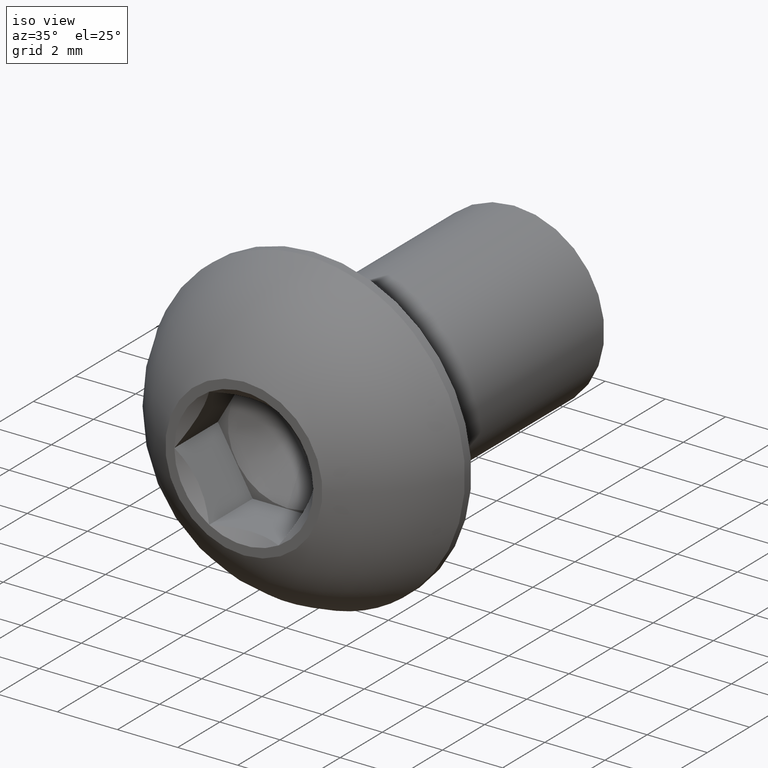
[diagram: clean part render]
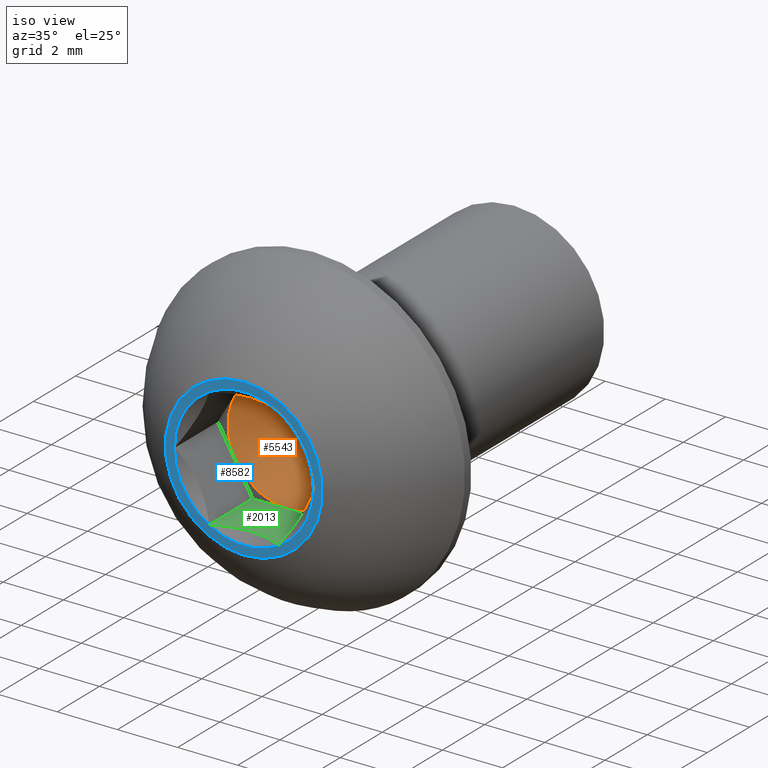
[diagram: same view with three faces highlighted in distinct colors, each labeled with its STEP entity id]
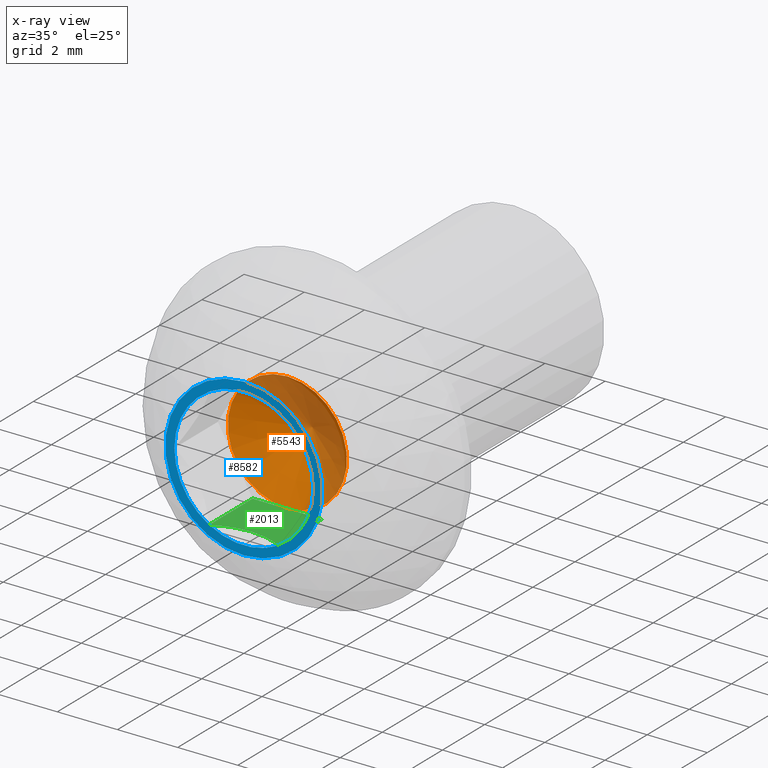
[diagram: x-ray of the same camera — body ghosted, the three highlighted faces saturated]
A machine part, iso view with three faces highlighted in distinct colors.
The next image is the same camera in x-ray (body ghosted, the three faces saturated) — at least one of them is partly hidden behind the body in this view.
Their STEP definitions:

[orange] entity #5543 — the highlighted conical surface has half-angle 59 deg.
#162 = ORIENTED_EDGE ( 'NONE', *, *, #5031, .F. ) ;
#1245 = CONICAL_SURFACE ( 'NONE', #7232, 1.979999999999999500, 1.029744258676657400 ) ;
#1353 = CARTESIAN_POINT ( 'NONE',  ( 0.0000000000000000000, 2.062499999999999600, -1.980000000000000000 ) ) ;
#1460 = DIRECTION ( 'NONE',  ( -0.0000000000000000000, 1.000000000000000000, -0.0000000000000000000 ) ) ;
#2366 = FACE_OUTER_BOUND ( 'NONE', #12409, .T. ) ;
#4270 = DIRECTION ( 'NONE',  ( 0.0000000000000000000, 0.0000000000000000000, -1.000000000000000000 ) ) ;
#5031 = EDGE_CURVE ( 'NONE', #14874, #14874, #10055, .T. ) ;
#5543 = ADVANCED_FACE ( 'NONE', ( #2366 ), #1245, .F. ) ;
#7232 = AXIS2_PLACEMENT_3D ( 'NONE', #10131, #12736, #4270 ) ;
#7824 = AXIS2_PLACEMENT_3D ( 'NONE', #8833, #1460, #11258 ) ;
#8833 = CARTESIAN_POINT ( 'NONE',  ( 0.0000000000000000000, 2.062499999999999600, 0.0000000000000000000 ) ) ;
#10055 = CIRCLE ( 'NONE', #7824, 1.980000000000000000 ) ;
#10131 = CARTESIAN_POINT ( 'NONE',  ( 0.0000000000000000000, 2.062499999999999100, 0.0000000000000000000 ) ) ;
#11258 = DIRECTION ( 'NONE',  ( 0.0000000000000000000, 0.0000000000000000000, -1.000000000000000000 ) ) ;
#12409 = EDGE_LOOP ( 'NONE', ( #162 ) ) ;
#12736 = DIRECTION ( 'NONE',  ( -0.0000000000000000000, -1.000000000000000000, -0.0000000000000000000 ) ) ;
#14874 = VERTEX_POINT ( 'NONE', #1353 ) ;

[blue] entity #8582 — the highlighted planar face has unit normal (0, 1, 0).
#141 = CARTESIAN_POINT ( 'NONE',  ( 0.0000000000000000000, -8.673617379884035500E-016, -2.609401076758501000 ) ) ;
#376 = CARTESIAN_POINT ( 'NONE',  ( -2.309401076758476300, 0.0000000000000000000, 1.326675390987758900E-016 ) ) ;
#422 = CARTESIAN_POINT ( 'NONE',  ( 0.0000000000000000000, 0.0000000000000000000, 0.0000000000000000000 ) ) ;
#535 = CIRCLE ( 'NONE', #15414, 2.309401076758502900 ) ;
#917 = ORIENTED_EDGE ( 'NONE', *, *, #6688, .T. ) ;
#969 = CARTESIAN_POINT ( 'NONE',  ( -1.154700538379267900, 0.0000000000000000000, -2.000000000000000900 ) ) ;
#1573 = FACE_OUTER_BOUND ( 'NONE', #6127, .T. ) ;
#1671 = DIRECTION ( 'NONE',  ( 0.0000000000000000000, 0.0000000000000000000, -1.000000000000000000 ) ) ;
#2018 = DIRECTION ( 'NONE',  ( 0.0000000000000000000, -0.0000000000000000000, 1.000000000000000000 ) ) ;
#2074 = AXIS2_PLACEMENT_3D ( 'NONE', #13815, #5546, #12656 ) ;
#2343 = AXIS2_PLACEMENT_3D ( 'NONE', #10836, #3671, #3722 ) ;
#2613 = VERTEX_POINT ( 'NONE', #376 ) ;
#2686 = CIRCLE ( 'NONE', #2343, 2.309401076758502900 ) ;
#2839 = VERTEX_POINT ( 'NONE', #141 ) ;
#3077 = AXIS2_PLACEMENT_3D ( 'NONE', #13717, #5244, #12515 ) ;
#3187 = CARTESIAN_POINT ( 'NONE',  ( 0.0000000000000000000, 0.0000000000000000000, 0.0000000000000000000 ) ) ;
#3671 = DIRECTION ( 'NONE',  ( -0.0000000000000000000, -1.000000000000000000, -0.0000000000000000000 ) ) ;
#3722 = DIRECTION ( 'NONE',  ( 0.0000000000000000000, 0.0000000000000000000, -1.000000000000000000 ) ) ;
#3823 = CIRCLE ( 'NONE', #15480, 2.309401076758502900 ) ;
#3907 = ORIENTED_EDGE ( 'NONE', *, *, #9244, .F. ) ;
#4233 = DIRECTION ( 'NONE',  ( 0.0000000000000000000, 0.0000000000000000000, -1.000000000000000000 ) ) ;
#4307 = EDGE_CURVE ( 'NONE', #2613, #12905, #535, .T. ) ;
#4752 = FACE_BOUND ( 'NONE', #12276, .T. ) ;
#5244 = DIRECTION ( 'NONE',  ( -0.0000000000000000000, -1.000000000000000000, -0.0000000000000000000 ) ) ;
#5546 = DIRECTION ( 'NONE',  ( -0.0000000000000000000, -1.000000000000000000, -0.0000000000000000000 ) ) ;
#5631 = PLANE ( 'NONE',  #10286 ) ;
#5775 = VERTEX_POINT ( 'NONE', #7388 ) ;
#6119 = DIRECTION ( 'NONE',  ( 0.0000000000000000000, 0.0000000000000000000, -1.000000000000000000 ) ) ;
#6127 = EDGE_LOOP ( 'NONE', ( #917 ) ) ;
#6490 = DIRECTION ( 'NONE',  ( -0.0000000000000000000, -1.000000000000000000, -0.0000000000000000000 ) ) ;
#6492 = VERTEX_POINT ( 'NONE', #15311 ) ;
#6495 = CARTESIAN_POINT ( 'NONE',  ( 0.0000000000000000000, -8.673617379884035500E-016, 0.0000000000000000000 ) ) ;
#6599 = DIRECTION ( 'NONE',  ( 0.0000000000000000000, 0.0000000000000000000, -1.000000000000000000 ) ) ;
#6688 = EDGE_CURVE ( 'NONE', #2839, #2839, #10218, .T. ) ;
#7141 = AXIS2_PLACEMENT_3D ( 'NONE', #6495, #8842, #6599 ) ;
#7388 = CARTESIAN_POINT ( 'NONE',  ( -1.154700538379267900, 0.0000000000000000000, 1.999999999999999600 ) ) ;
#7919 = CARTESIAN_POINT ( 'NONE',  ( 2.609401076758502700, -4.336808689942017700E-016, 0.0000000000000000000 ) ) ;
#8176 = EDGE_CURVE ( 'NONE', #5775, #2613, #8485, .T. ) ;
#8485 = CIRCLE ( 'NONE', #3077, 2.309401076758502900 ) ;
#8582 = ADVANCED_FACE ( 'NONE', ( #4752, #1573 ), #5631, .F. ) ;
#8842 = DIRECTION ( 'NONE',  ( -0.0000000000000000000, -1.000000000000000000, -0.0000000000000000000 ) ) ;
#8869 = CARTESIAN_POINT ( 'NONE',  ( 1.154700538379223500, 0.0000000000000000000, -2.000000000000016000 ) ) ;
#8871 = CIRCLE ( 'NONE', #2074, 2.309401076758502900 ) ;
#9082 = AXIS2_PLACEMENT_3D ( 'NONE', #3187, #11415, #4233 ) ;
#9244 = EDGE_CURVE ( 'NONE', #9754, #6492, #2686, .T. ) ;
#9270 = CIRCLE ( 'NONE', #9082, 2.309401076758502900 ) ;
#9595 = VERTEX_POINT ( 'NONE', #10564 ) ;
#9754 = VERTEX_POINT ( 'NONE', #8869 ) ;
#9960 = ORIENTED_EDGE ( 'NONE', *, *, #8176, .F. ) ;
#10218 = CIRCLE ( 'NONE', #7141, 2.609401076758501000 ) ;
#10244 = EDGE_CURVE ( 'NONE', #12905, #9754, #9270, .T. ) ;
#10286 = AXIS2_PLACEMENT_3D ( 'NONE', #7919, #13897, #2018 ) ;
#10499 = ORIENTED_EDGE ( 'NONE', *, *, #12106, .F. ) ;
#10564 = CARTESIAN_POINT ( 'NONE',  ( 1.154700538379232100, 0.0000000000000000000, 1.999999999999999600 ) ) ;
#10836 = CARTESIAN_POINT ( 'NONE',  ( 0.0000000000000000000, 0.0000000000000000000, 0.0000000000000000000 ) ) ;
#11415 = DIRECTION ( 'NONE',  ( -0.0000000000000000000, -1.000000000000000000, -0.0000000000000000000 ) ) ;
#12012 = CARTESIAN_POINT ( 'NONE',  ( 0.0000000000000000000, 0.0000000000000000000, 0.0000000000000000000 ) ) ;
#12013 = EDGE_CURVE ( 'NONE', #6492, #9595, #3823, .T. ) ;
#12106 = EDGE_CURVE ( 'NONE', #9595, #5775, #8871, .T. ) ;
#12276 = EDGE_LOOP ( 'NONE', ( #3907, #14868, #13569, #9960, #10499, #14522 ) ) ;
#12515 = DIRECTION ( 'NONE',  ( 0.0000000000000000000, 0.0000000000000000000, -1.000000000000000000 ) ) ;
#12656 = DIRECTION ( 'NONE',  ( 0.0000000000000000000, 0.0000000000000000000, -1.000000000000000000 ) ) ;
#12905 = VERTEX_POINT ( 'NONE', #969 ) ;
#13233 = DIRECTION ( 'NONE',  ( -0.0000000000000000000, -1.000000000000000000, -0.0000000000000000000 ) ) ;
#13569 = ORIENTED_EDGE ( 'NONE', *, *, #4307, .F. ) ;
#13717 = CARTESIAN_POINT ( 'NONE',  ( 0.0000000000000000000, 0.0000000000000000000, 0.0000000000000000000 ) ) ;
#13815 = CARTESIAN_POINT ( 'NONE',  ( 0.0000000000000000000, 0.0000000000000000000, 0.0000000000000000000 ) ) ;
#13897 = DIRECTION ( 'NONE',  ( 0.0000000000000000000, 1.000000000000000000, 0.0000000000000000000 ) ) ;
#14522 = ORIENTED_EDGE ( 'NONE', *, *, #12013, .F. ) ;
#14868 = ORIENTED_EDGE ( 'NONE', *, *, #10244, .F. ) ;
#15311 = CARTESIAN_POINT ( 'NONE',  ( 2.309401076758477200, 0.0000000000000000000, -4.329725882211680000E-016 ) ) ;
#15414 = AXIS2_PLACEMENT_3D ( 'NONE', #12012, #13233, #6119 ) ;
#15480 = AXIS2_PLACEMENT_3D ( 'NONE', #422, #6490, #1671 ) ;

[green] entity #2013 — the highlighted planar face has unit normal (0, 0, -1).
#92 = CARTESIAN_POINT ( 'NONE',  ( -1.154700538379267900, 2.062499999999999600, -2.000000000000000900 ) ) ;
#96 = CARTESIAN_POINT ( 'NONE',  ( -0.4015228115318104600, 0.2778787755379924000, -2.000000000000000400 ) ) ;
#642 = DIRECTION ( 'NONE',  ( 0.0000000000000000000, 0.0000000000000000000, -1.000000000000000000 ) ) ;
#957 = VECTOR ( 'NONE', #10927, 1000.000000000000000 ) ;
#969 = CARTESIAN_POINT ( 'NONE',  ( -1.154700538379267900, 0.0000000000000000000, -2.000000000000000900 ) ) ;
#1458 = CARTESIAN_POINT ( 'NONE',  ( -0.9755627209765441700, 0.08956890870135708600, -2.000000000000000900 ) ) ;
#1507 = EDGE_CURVE ( 'NONE', #6448, #12905, #4872, .T. ) ;
#1810 = AXIS2_PLACEMENT_3D ( 'NONE', #4291, #642, #11536 ) ;
#2013 = ADVANCED_FACE ( 'NONE', ( #4133 ), #5601, .F. ) ;
#2508 = CARTESIAN_POINT ( 'NONE',  ( -0.2024194915155727300, 0.3094573912014516000, -2.000000000000000400 ) ) ;
#3311 = CARTESIAN_POINT ( 'NONE',  ( 0.4011372671684942400, 0.2780211014149388500, -2.000000000000001300 ) ) ;
#3601 = EDGE_CURVE ( 'NONE', #9754, #12905, #4627, .T. ) ;
#3742 = ORIENTED_EDGE ( 'NONE', *, *, #1507, .T. ) ;
#4133 = FACE_OUTER_BOUND ( 'NONE', #14498, .T. ) ;
#4291 = CARTESIAN_POINT ( 'NONE',  ( -1.154700538379267900, 2.062499999999999600, -2.000000000000000900 ) ) ;
#4519 = CARTESIAN_POINT ( 'NONE',  ( -1.154700538379267900, 2.062499999999999600, -2.000000000000000900 ) ) ;
#4627 = B_SPLINE_CURVE_WITH_KNOTS ( 'NONE', 3,
 ( #6952, #8049, #8206, #3311, #6116, #2508, #96, #9666, #1458, #10880 ),
 .UNSPECIFIED., .F., .F.,
 ( 4, 2, 2, 2, 4 ),
 ( 0.001229301740354063300, 0.001827455971444666200, 0.002425610202535268900, 0.003023764433625872200, 0.003621918664716474600 ),
 .UNSPECIFIED. ) ;
#4872 = LINE ( 'NONE', #92, #957 ) ;
#4959 = VECTOR ( 'NONE', #13872, 1000.000000000000000 ) ;
#5601 = PLANE ( 'NONE',  #1810 ) ;
#6116 = CARTESIAN_POINT ( 'NONE',  ( 0.2035307927602217300, 0.3093446079417590500, -2.000000000000001300 ) ) ;
#6448 = VERTEX_POINT ( 'NONE', #4519 ) ;
#6830 = CARTESIAN_POINT ( 'NONE',  ( 1.154700538379232100, 2.062499999999999600, -2.000000000000000900 ) ) ;
#6952 = CARTESIAN_POINT ( 'NONE',  ( 1.154700538379223500, 0.0000000000000000000, -2.000000000000016000 ) ) ;
#8049 = CARTESIAN_POINT ( 'NONE',  ( 0.9760520563021568600, 0.08932424103854608200, -2.000000000000001300 ) ) ;
#8206 = CARTESIAN_POINT ( 'NONE',  ( 0.7881676911335731000, 0.1677190727106928600, -2.000000000000001300 ) ) ;
#8704 = EDGE_CURVE ( 'NONE', #13562, #9754, #9234, .T. ) ;
#8712 = LINE ( 'NONE', #8996, #4959 ) ;
#8869 = CARTESIAN_POINT ( 'NONE',  ( 1.154700538379223500, 0.0000000000000000000, -2.000000000000016000 ) ) ;
#8996 = CARTESIAN_POINT ( 'NONE',  ( -1.154700538379267900, 2.062499999999999600, -2.000000000000000900 ) ) ;
#9023 = ORIENTED_EDGE ( 'NONE', *, *, #8704, .F. ) ;
#9234 = LINE ( 'NONE', #11869, #14361 ) ;
#9666 = CARTESIAN_POINT ( 'NONE',  ( -0.7870183626005198300, 0.1680790096125359400, -2.000000000000000900 ) ) ;
#9754 = VERTEX_POINT ( 'NONE', #8869 ) ;
#10177 = ORIENTED_EDGE ( 'NONE', *, *, #3601, .F. ) ;
#10880 = CARTESIAN_POINT ( 'NONE',  ( -1.154700538379267900, 0.0000000000000000000, -2.000000000000000900 ) ) ;
#10910 = EDGE_CURVE ( 'NONE', #6448, #13562, #8712, .T. ) ;
#10927 = DIRECTION ( 'NONE',  ( 0.0000000000000000000, -1.000000000000000000, 0.0000000000000000000 ) ) ;
#11536 = DIRECTION ( 'NONE',  ( -1.000000000000000000, 0.0000000000000000000, -0.0000000000000000000 ) ) ;
#11869 = CARTESIAN_POINT ( 'NONE',  ( 1.154700538379232100, 2.062499999999999600, -2.000000000000000900 ) ) ;
#11921 = DIRECTION ( 'NONE',  ( 0.0000000000000000000, -1.000000000000000000, 0.0000000000000000000 ) ) ;
#12905 = VERTEX_POINT ( 'NONE', #969 ) ;
#13047 = ORIENTED_EDGE ( 'NONE', *, *, #10910, .F. ) ;
#13562 = VERTEX_POINT ( 'NONE', #6830 ) ;
#13872 = DIRECTION ( 'NONE',  ( 1.000000000000000000, 0.0000000000000000000, 0.0000000000000000000 ) ) ;
#14361 = VECTOR ( 'NONE', #11921, 1000.000000000000000 ) ;
#14498 = EDGE_LOOP ( 'NONE', ( #9023, #13047, #3742, #10177 ) ) ;